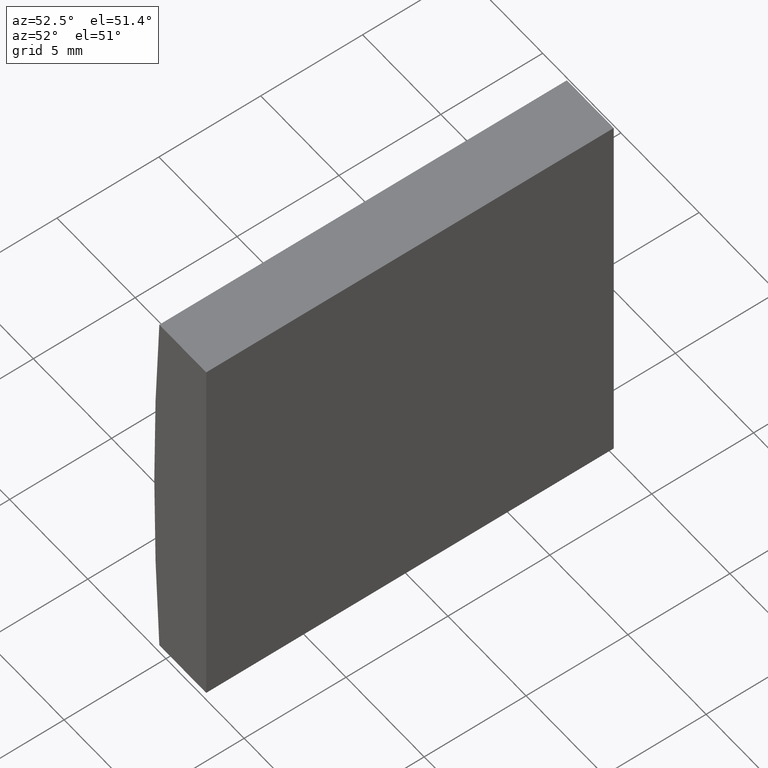
[diagram: clean part render]
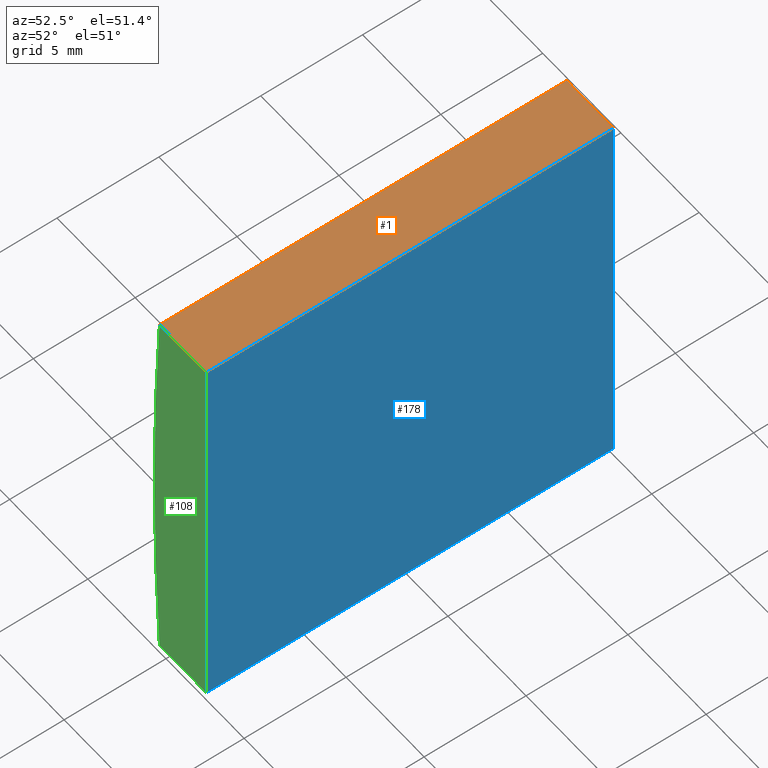
[diagram: same view with three faces highlighted in distinct colors, each labeled with its STEP entity id]
A machine part, auxiliary view with three faces highlighted in distinct colors.
Their STEP definitions:

[orange] entity #1 — the highlighted planar face has unit normal (0, 0, -1).
#1 = ADVANCED_FACE ( 'NONE', ( #2 ), #44, .F. ) ;
#2 = FACE_OUTER_BOUND ( 'NONE', #194, .T. ) ;
#10 = ORIENTED_EDGE ( 'NONE', *, *, #12, .T. ) ;
#12 = EDGE_CURVE ( 'NONE', #191, #20, #54, .T. ) ;
#16 = CARTESIAN_POINT ( 'NONE',  ( -150.4220872811994200, 0.0000000000000000000, 10.00000000000000000 ) ) ;
#20 = VERTEX_POINT ( 'NONE', #186 ) ;
#25 = ORIENTED_EDGE ( 'NONE', *, *, #120, .F. ) ;
#33 = VECTOR ( 'NONE', #159, 1000.000000000000000 ) ;
#43 = ORIENTED_EDGE ( 'NONE', *, *, #167, .T. ) ;
#44 = PLANE ( 'NONE',  #184 ) ;
#54 = LINE ( 'NONE', #16, #97 ) ;
#65 = DIRECTION ( 'NONE',  ( -0.0000000000000000000, -1.000000000000000000, -0.0000000000000000000 ) ) ;
#66 = ORIENTED_EDGE ( 'NONE', *, *, #141, .F. ) ;
#68 = VECTOR ( 'NONE', #121, 1000.000000000000000 ) ;
#69 = VERTEX_POINT ( 'NONE', #124 ) ;
#77 = DIRECTION ( 'NONE',  ( 0.0000000000000000000, 0.0000000000000000000, -1.000000000000000000 ) ) ;
#78 = CARTESIAN_POINT ( 'NONE',  ( -147.4247956651487600, 20.00000000000000000, 10.00000000000000000 ) ) ;
#97 = VECTOR ( 'NONE', #139, 1000.000000000000000 ) ;
#98 = LINE ( 'NONE', #179, #33 ) ;
#117 = CARTESIAN_POINT ( 'NONE',  ( -150.4220872811994200, 20.00000000000000000, 10.00000000000000000 ) ) ;
#118 = CARTESIAN_POINT ( 'NONE',  ( -150.4220872811994200, 20.00000000000000000, 10.00000000000000000 ) ) ;
#120 = EDGE_CURVE ( 'NONE', #69, #20, #169, .T. ) ;
#121 = DIRECTION ( 'NONE',  ( 1.000000000000000000, 0.0000000000000000000, 0.0000000000000000000 ) ) ;
#124 = CARTESIAN_POINT ( 'NONE',  ( -147.4247956651487600, 20.00000000000000000, 10.00000000000000000 ) ) ;
#139 = DIRECTION ( 'NONE',  ( 1.000000000000000000, 0.0000000000000000000, 0.0000000000000000000 ) ) ;
#140 = DIRECTION ( 'NONE',  ( -1.000000000000000000, 0.0000000000000000000, -0.0000000000000000000 ) ) ;
#141 = EDGE_CURVE ( 'NONE', #192, #69, #189, .T. ) ;
#145 = VECTOR ( 'NONE', #65, 1000.000000000000000 ) ;
#153 = CARTESIAN_POINT ( 'NONE',  ( -150.4220872811994200, 0.0000000000000000000, 10.00000000000000000 ) ) ;
#159 = DIRECTION ( 'NONE',  ( -0.0000000000000000000, -1.000000000000000000, -0.0000000000000000000 ) ) ;
#167 = EDGE_CURVE ( 'NONE', #192, #191, #98, .T. ) ;
#169 = LINE ( 'NONE', #78, #145 ) ;
#179 = CARTESIAN_POINT ( 'NONE',  ( -150.4220872811994200, 20.00000000000000000, 10.00000000000000000 ) ) ;
#184 = AXIS2_PLACEMENT_3D ( 'NONE', #118, #77, #140 ) ;
#186 = CARTESIAN_POINT ( 'NONE',  ( -147.4247956651487600, 0.0000000000000000000, 10.00000000000000000 ) ) ;
#189 = LINE ( 'NONE', #195, #68 ) ;
#191 = VERTEX_POINT ( 'NONE', #153 ) ;
#192 = VERTEX_POINT ( 'NONE', #117 ) ;
#194 = EDGE_LOOP ( 'NONE', ( #10, #25, #66, #43 ) ) ;
#195 = CARTESIAN_POINT ( 'NONE',  ( -150.4220872811994200, 20.00000000000000000, 10.00000000000000000 ) ) ;

[blue] entity #178 — the highlighted planar face has unit normal (-1, 0, 0).
#9 = CARTESIAN_POINT ( 'NONE',  ( -147.4247956651487600, 20.00000000000000000, -9.999999999999985800 ) ) ;
#20 = VERTEX_POINT ( 'NONE', #186 ) ;
#36 = EDGE_CURVE ( 'NONE', #20, #76, #55, .T. ) ;
#38 = ORIENTED_EDGE ( 'NONE', *, *, #36, .T. ) ;
#53 = VECTOR ( 'NONE', #94, 1000.000000000000000 ) ;
#55 = LINE ( 'NONE', #165, #53 ) ;
#61 = AXIS2_PLACEMENT_3D ( 'NONE', #188, #136, #199 ) ;
#65 = DIRECTION ( 'NONE',  ( -0.0000000000000000000, -1.000000000000000000, -0.0000000000000000000 ) ) ;
#69 = VERTEX_POINT ( 'NONE', #124 ) ;
#76 = VERTEX_POINT ( 'NONE', #79 ) ;
#78 = CARTESIAN_POINT ( 'NONE',  ( -147.4247956651487600, 20.00000000000000000, 10.00000000000000000 ) ) ;
#79 = CARTESIAN_POINT ( 'NONE',  ( -147.4247956651487600, 0.0000000000000000000, -9.999999999999985800 ) ) ;
#85 = CARTESIAN_POINT ( 'NONE',  ( -147.4247956651487600, 20.00000000000000000, -9.999999999999985800 ) ) ;
#88 = DIRECTION ( 'NONE',  ( -0.0000000000000000000, -0.0000000000000000000, -1.000000000000000000 ) ) ;
#94 = DIRECTION ( 'NONE',  ( -0.0000000000000000000, -0.0000000000000000000, -1.000000000000000000 ) ) ;
#109 = ORIENTED_EDGE ( 'NONE', *, *, #190, .F. ) ;
#111 = ORIENTED_EDGE ( 'NONE', *, *, #120, .T. ) ;
#112 = LINE ( 'NONE', #9, #116 ) ;
#116 = VECTOR ( 'NONE', #163, 1000.000000000000000 ) ;
#120 = EDGE_CURVE ( 'NONE', #69, #20, #169, .T. ) ;
#124 = CARTESIAN_POINT ( 'NONE',  ( -147.4247956651487600, 20.00000000000000000, 10.00000000000000000 ) ) ;
#134 = PLANE ( 'NONE',  #61 ) ;
#136 = DIRECTION ( 'NONE',  ( -1.000000000000000000, 0.0000000000000000000, 0.0000000000000000000 ) ) ;
#137 = VERTEX_POINT ( 'NONE', #85 ) ;
#145 = VECTOR ( 'NONE', #65, 1000.000000000000000 ) ;
#152 = LINE ( 'NONE', #201, #193 ) ;
#163 = DIRECTION ( 'NONE',  ( -0.0000000000000000000, -1.000000000000000000, -0.0000000000000000000 ) ) ;
#164 = EDGE_LOOP ( 'NONE', ( #38, #109, #196, #111 ) ) ;
#165 = CARTESIAN_POINT ( 'NONE',  ( -147.4247956651487600, 0.0000000000000000000, -9.999999999999985800 ) ) ;
#169 = LINE ( 'NONE', #78, #145 ) ;
#170 = EDGE_CURVE ( 'NONE', #69, #137, #152, .T. ) ;
#178 = ADVANCED_FACE ( 'NONE', ( #198 ), #134, .F. ) ;
#186 = CARTESIAN_POINT ( 'NONE',  ( -147.4247956651487600, 0.0000000000000000000, 10.00000000000000000 ) ) ;
#188 = CARTESIAN_POINT ( 'NONE',  ( -147.4247956651487600, 20.00000000000000000, -9.999999999999985800 ) ) ;
#190 = EDGE_CURVE ( 'NONE', #137, #76, #112, .T. ) ;
#193 = VECTOR ( 'NONE', #88, 1000.000000000000000 ) ;
#196 = ORIENTED_EDGE ( 'NONE', *, *, #170, .F. ) ;
#198 = FACE_OUTER_BOUND ( 'NONE', #164, .T. ) ;
#199 = DIRECTION ( 'NONE',  ( 0.0000000000000000000, 0.0000000000000000000, 1.000000000000000000 ) ) ;
#201 = CARTESIAN_POINT ( 'NONE',  ( -147.4247956651487600, 20.00000000000000000, -9.999999999999985800 ) ) ;

[green] entity #108 — the highlighted planar face has unit normal (0, 1, 0).
#4 = VECTOR ( 'NONE', #24, 1000.000000000000000 ) ;
#5 = EDGE_LOOP ( 'NONE', ( #72, #32, #28, #95 ) ) ;
#7 = DIRECTION ( 'NONE',  ( 0.0000000000000000000, 1.000000000000000000, 0.0000000000000000000 ) ) ;
#12 = EDGE_CURVE ( 'NONE', #191, #20, #54, .T. ) ;
#13 = PLANE ( 'NONE',  #70 ) ;
#14 = FACE_OUTER_BOUND ( 'NONE', #5, .T. ) ;
#15 = EDGE_CURVE ( 'NONE', #80, #191, #18, .T. ) ;
#16 = CARTESIAN_POINT ( 'NONE',  ( -150.4220872811994200, 0.0000000000000000000, 10.00000000000000000 ) ) ;
#18 = CIRCLE ( 'NONE', #51, 155.0999999999999900 ) ;
#20 = VERTEX_POINT ( 'NONE', #186 ) ;
#24 = DIRECTION ( 'NONE',  ( -1.000000000000000000, -0.0000000000000000000, -4.630109307181893800E-015 ) ) ;
#27 = CARTESIAN_POINT ( 'NONE',  ( 4.355204334851265500, 0.0000000000000000000, 4.286263797015675000E-017 ) ) ;
#28 = ORIENTED_EDGE ( 'NONE', *, *, #36, .F. ) ;
#32 = ORIENTED_EDGE ( 'NONE', *, *, #50, .F. ) ;
#35 = DIRECTION ( 'NONE',  ( 0.0000000000000000000, -0.0000000000000000000, 1.000000000000000000 ) ) ;
#36 = EDGE_CURVE ( 'NONE', #20, #76, #55, .T. ) ;
#47 = CARTESIAN_POINT ( 'NONE',  ( -150.4220872811994200, 0.0000000000000000000, -10.00000000000000000 ) ) ;
#50 = EDGE_CURVE ( 'NONE', #76, #80, #59, .T. ) ;
#51 = AXIS2_PLACEMENT_3D ( 'NONE', #82, #81, #115 ) ;
#53 = VECTOR ( 'NONE', #94, 1000.000000000000000 ) ;
#54 = LINE ( 'NONE', #16, #97 ) ;
#55 = LINE ( 'NONE', #165, #53 ) ;
#59 = LINE ( 'NONE', #47, #4 ) ;
#70 = AXIS2_PLACEMENT_3D ( 'NONE', #27, #7, #35 ) ;
#71 = CARTESIAN_POINT ( 'NONE',  ( -150.4220872811994200, 0.0000000000000000000, -10.00000000000000000 ) ) ;
#72 = ORIENTED_EDGE ( 'NONE', *, *, #15, .F. ) ;
#76 = VERTEX_POINT ( 'NONE', #79 ) ;
#79 = CARTESIAN_POINT ( 'NONE',  ( -147.4247956651487600, 0.0000000000000000000, -9.999999999999985800 ) ) ;
#80 = VERTEX_POINT ( 'NONE', #71 ) ;
#81 = DIRECTION ( 'NONE',  ( 0.0000000000000000000, 1.000000000000000000, 0.0000000000000000000 ) ) ;
#82 = CARTESIAN_POINT ( 'NONE',  ( 4.355204334851265500, 0.0000000000000000000, 4.286263797015675000E-017 ) ) ;
#94 = DIRECTION ( 'NONE',  ( -0.0000000000000000000, -0.0000000000000000000, -1.000000000000000000 ) ) ;
#95 = ORIENTED_EDGE ( 'NONE', *, *, #12, .F. ) ;
#97 = VECTOR ( 'NONE', #139, 1000.000000000000000 ) ;
#108 = ADVANCED_FACE ( 'NONE', ( #14 ), #13, .F. ) ;
#115 = DIRECTION ( 'NONE',  ( 0.0000000000000000000, 0.0000000000000000000, 1.000000000000000000 ) ) ;
#139 = DIRECTION ( 'NONE',  ( 1.000000000000000000, 0.0000000000000000000, 0.0000000000000000000 ) ) ;
#153 = CARTESIAN_POINT ( 'NONE',  ( -150.4220872811994200, 0.0000000000000000000, 10.00000000000000000 ) ) ;
#165 = CARTESIAN_POINT ( 'NONE',  ( -147.4247956651487600, 0.0000000000000000000, -9.999999999999985800 ) ) ;
#186 = CARTESIAN_POINT ( 'NONE',  ( -147.4247956651487600, 0.0000000000000000000, 10.00000000000000000 ) ) ;
#191 = VERTEX_POINT ( 'NONE', #153 ) ;